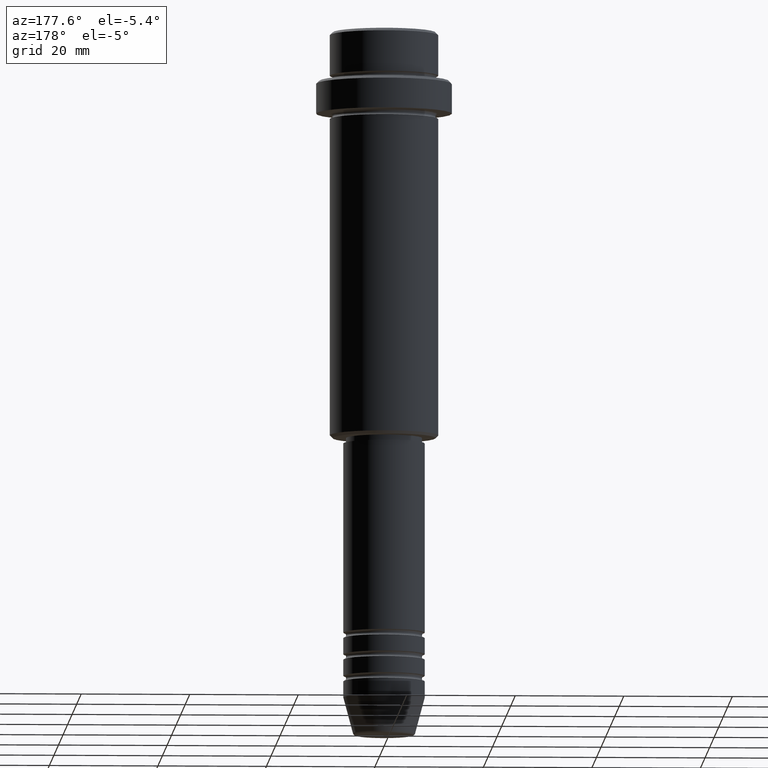
[diagram: clean part render]
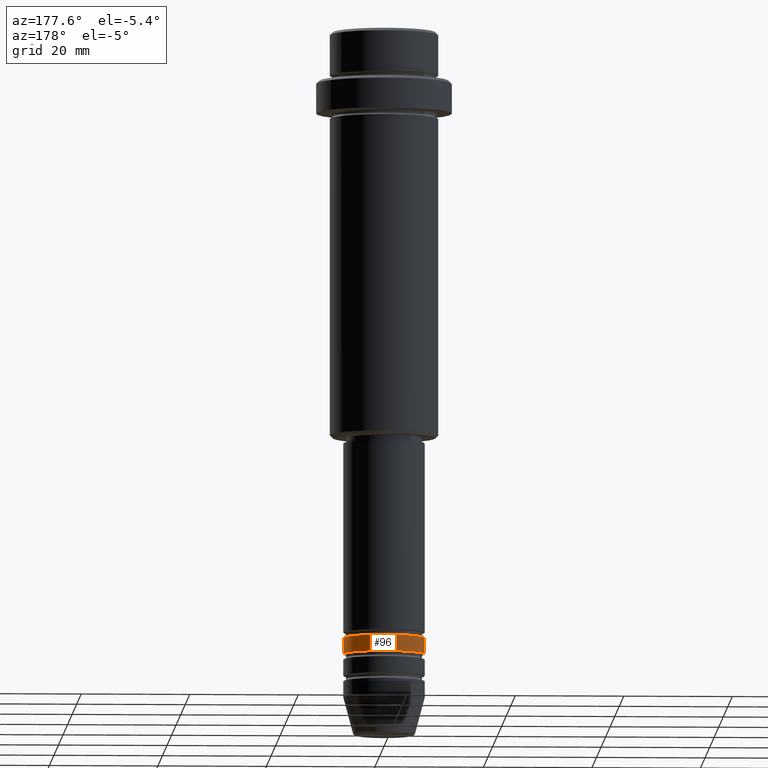
[diagram: same view with one face highlighted and labeled with its STEP entity id]
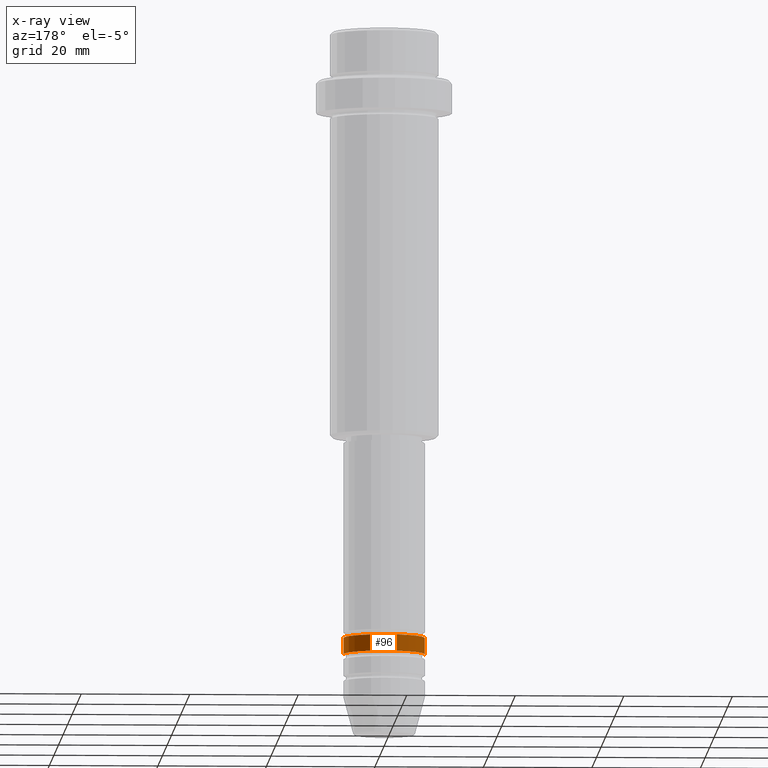
[diagram: x-ray of the same camera — body ghosted, the highlighted face saturated]
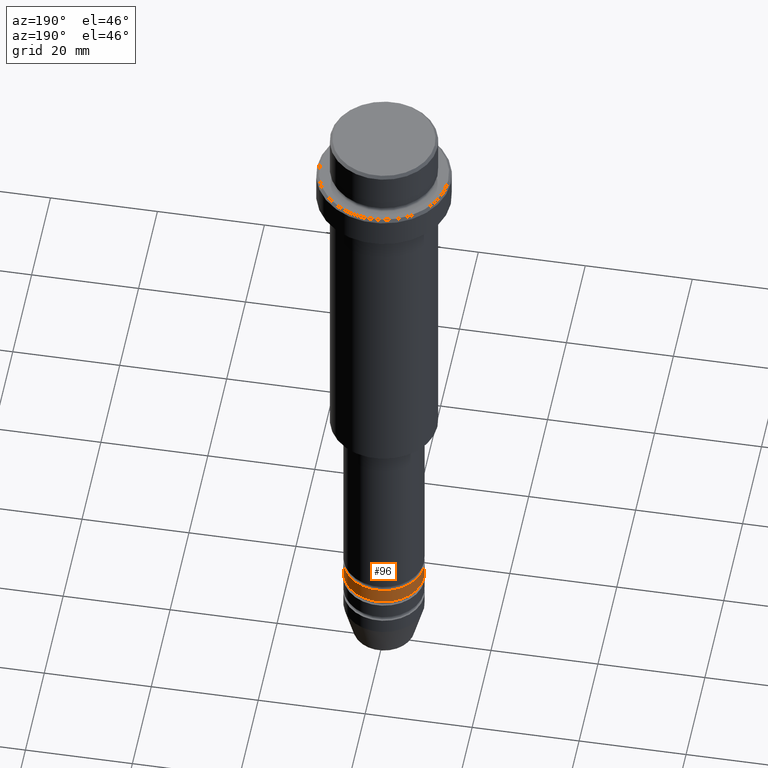
[diagram: same view with one face highlighted and labeled with its STEP entity id]
A machine part, auxiliary view. The second image highlights one B-rep face of the part: STEP entity #96.
The next image is the same camera in x-ray: the body ghosted, the highlighted face saturated — about 0% of this face is hidden behind the body in this view.
A second angle (auxiliary view) of the same face is appended — the face is thin or edge-on in the first view.
In plain terms, the highlighted cylindrical surface (partial cylindrical patch) has radius 7.5 mm, axis along (-0, -0, 1).
Its self-contained STEP definition (entity closure, byte-faithful):
#5 = CARTESIAN_POINT ( 'NONE',  ( 7.500000000000000000, 0.000000000000000000, -111.9999999999998863 ) ) ;
#65 = LINE ( 'NONE', #1286, #822 ) ;
#70 = DIRECTION ( 'NONE',  ( -0.000000000000000000, -0.000000000000000000, 1.000000000000000000 ) ) ;
#96 = ADVANCED_FACE ( 'NONE', ( #303 ), #807, .T. ) ;
#102 = CARTESIAN_POINT ( 'NONE',  ( 0.000000000000000000, 0.000000000000000000, -111.9999999999998863 ) ) ;
#117 = DIRECTION ( 'NONE',  ( -0.000000000000000000, -0.000000000000000000, 1.000000000000000000 ) ) ;
#176 = CIRCLE ( 'NONE', #970, 7.500000000000000000 ) ;
#239 = ORIENTED_EDGE ( 'NONE', *, *, #1017, .T. ) ;
#303 = FACE_OUTER_BOUND ( 'NONE', #685, .T. ) ;
#402 = CARTESIAN_POINT ( 'NONE',  ( -7.500000000000000000, 9.184850993605147944E-16, -114.9999999999999005 ) ) ;
#489 = CIRCLE ( 'NONE', #1298, 7.500000000000000000 ) ;
#523 = CARTESIAN_POINT ( 'NONE',  ( 7.500000000000000000, 0.000000000000000000, -114.9999999999999005 ) ) ;
#531 = DIRECTION ( 'NONE',  ( -0.000000000000000000, -0.000000000000000000, 1.000000000000000000 ) ) ;
#552 = VERTEX_POINT ( 'NONE', #523 ) ;
#557 = DIRECTION ( 'NONE',  ( -0.000000000000000000, -0.000000000000000000, 1.000000000000000000 ) ) ;
#585 = EDGE_CURVE ( 'NONE', #1195, #1383, #489, .T. ) ;
#685 = EDGE_LOOP ( 'NONE', ( #239, #916, #707, #1361 ) ) ;
#703 = CARTESIAN_POINT ( 'NONE',  ( 0.000000000000000000, 0.000000000000000000, 0.000000000000000000 ) ) ;
#707 = ORIENTED_EDGE ( 'NONE', *, *, #585, .F. ) ;
#728 = VECTOR ( 'NONE', #557, 1000.000000000000000 ) ;
#748 = LINE ( 'NONE', #1027, #728 ) ;
#807 = CYLINDRICAL_SURFACE ( 'NONE', #1353, 7.500000000000000000 ) ;
#822 = VECTOR ( 'NONE', #70, 1000.000000000000000 ) ;
#916 = ORIENTED_EDGE ( 'NONE', *, *, #1280, .T. ) ;
#970 = AXIS2_PLACEMENT_3D ( 'NONE', #1270, #1162, #1060 ) ;
#982 = DIRECTION ( 'NONE',  ( 1.000000000000000000, 0.000000000000000000, 0.000000000000000000 ) ) ;
#1017 = EDGE_CURVE ( 'NONE', #552, #1029, #176, .T. ) ;
#1027 = CARTESIAN_POINT ( 'NONE',  ( -7.500000000000000000, 9.184850993605147944E-16, 0.000000000000000000 ) ) ;
#1029 = VERTEX_POINT ( 'NONE', #402 ) ;
#1060 = DIRECTION ( 'NONE',  ( 1.000000000000000000, 0.000000000000000000, 0.000000000000000000 ) ) ;
#1098 = EDGE_CURVE ( 'NONE', #552, #1195, #65, .T. ) ;
#1162 = DIRECTION ( 'NONE',  ( -0.000000000000000000, -0.000000000000000000, 1.000000000000000000 ) ) ;
#1195 = VERTEX_POINT ( 'NONE', #5 ) ;
#1270 = CARTESIAN_POINT ( 'NONE',  ( 0.000000000000000000, 0.000000000000000000, -114.9999999999999005 ) ) ;
#1280 = EDGE_CURVE ( 'NONE', #1029, #1383, #748, .T. ) ;
#1286 = CARTESIAN_POINT ( 'NONE',  ( 7.500000000000000000, 0.000000000000000000, 0.000000000000000000 ) ) ;
#1298 = AXIS2_PLACEMENT_3D ( 'NONE', #102, #117, #1305 ) ;
#1305 = DIRECTION ( 'NONE',  ( 1.000000000000000000, 0.000000000000000000, 0.000000000000000000 ) ) ;
#1350 = CARTESIAN_POINT ( 'NONE',  ( -7.500000000000000000, 9.184850993605147944E-16, -111.9999999999998863 ) ) ;
#1353 = AXIS2_PLACEMENT_3D ( 'NONE', #703, #531, #982 ) ;
#1361 = ORIENTED_EDGE ( 'NONE', *, *, #1098, .F. ) ;
#1383 = VERTEX_POINT ( 'NONE', #1350 ) ;